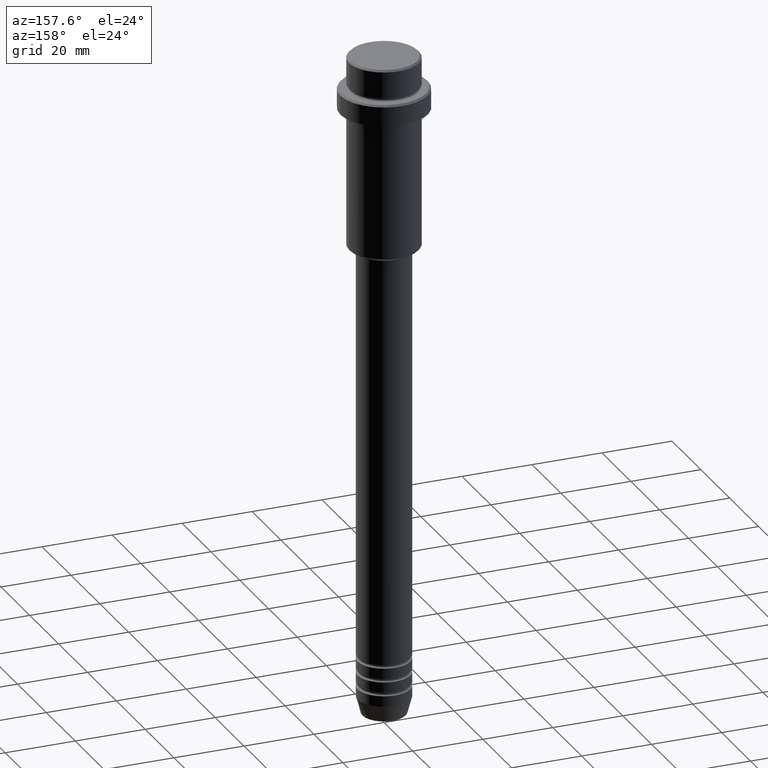
[diagram: clean part render]
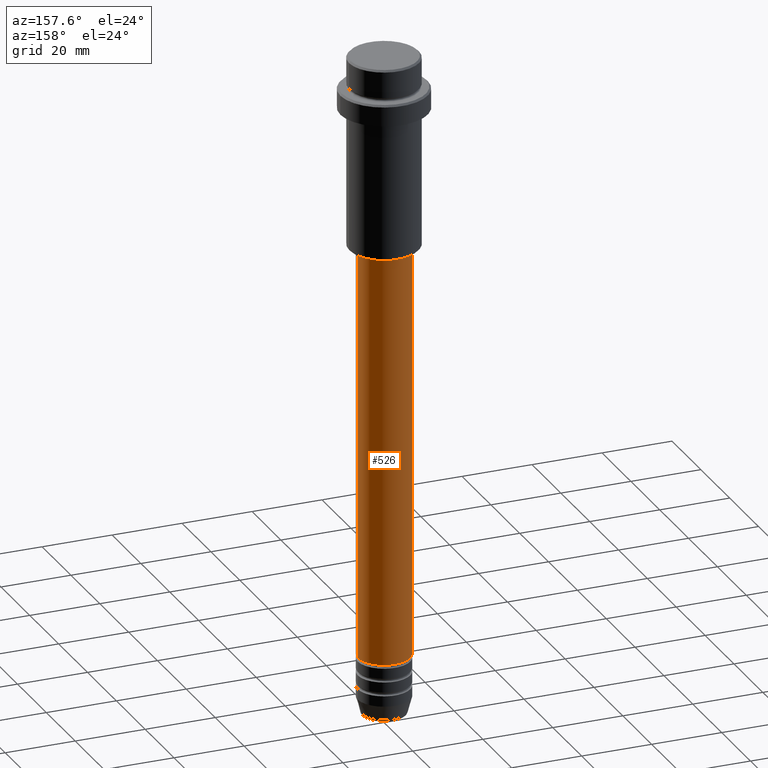
[diagram: same view with one face highlighted and labeled with its STEP entity id]
A machine part, auxiliary view. The second image highlights one B-rep face of the part: STEP entity #526.
In plain terms, the highlighted cylindrical surface (edge-blend (fillet) strip) has radius 7.5 mm, axis along (-0, -0, 1).
Its self-contained STEP definition (entity closure, byte-faithful):
#26 = CYLINDRICAL_SURFACE ( 'NONE', #1089, 7.500000000000000000 ) ;
#107 = DIRECTION ( 'NONE',  ( -0.000000000000000000, -0.000000000000000000, 1.000000000000000000 ) ) ;
#200 = ORIENTED_EDGE ( 'NONE', *, *, #774, .T. ) ;
#232 = EDGE_LOOP ( 'NONE', ( #200, #1195, #753, #1387 ) ) ;
#384 = DIRECTION ( 'NONE',  ( -0.000000000000000000, -0.000000000000000000, 1.000000000000000000 ) ) ;
#449 = DIRECTION ( 'NONE',  ( -0.000000000000000000, -0.000000000000000000, 1.000000000000000000 ) ) ;
#485 = CARTESIAN_POINT ( 'NONE',  ( 7.500000000000000000, 0.000000000000000000, 0.000000000000000000 ) ) ;
#495 = CARTESIAN_POINT ( 'NONE',  ( 7.500000000000000000, 0.000000000000000000, -172.9999999999999147 ) ) ;
#500 = CARTESIAN_POINT ( 'NONE',  ( 7.500000000000000000, 0.000000000000000000, -56.00000000000000000 ) ) ;
#507 = DIRECTION ( 'NONE',  ( -0.000000000000000000, -0.000000000000000000, 1.000000000000000000 ) ) ;
#525 = CARTESIAN_POINT ( 'NONE',  ( 0.000000000000000000, 0.000000000000000000, 0.000000000000000000 ) ) ;
#526 = ADVANCED_FACE ( 'NONE', ( #788 ), #26, .T. ) ;
#536 = VECTOR ( 'NONE', #449, 1000.000000000000000 ) ;
#559 = DIRECTION ( 'NONE',  ( -0.000000000000000000, -0.000000000000000000, 1.000000000000000000 ) ) ;
#662 = VECTOR ( 'NONE', #384, 1000.000000000000000 ) ;
#732 = CARTESIAN_POINT ( 'NONE',  ( -7.500000000000000000, 9.184850993605147944E-16, -56.00000000000000000 ) ) ;
#753 = ORIENTED_EDGE ( 'NONE', *, *, #1390, .F. ) ;
#774 = EDGE_CURVE ( 'NONE', #1017, #1086, #824, .T. ) ;
#788 = FACE_OUTER_BOUND ( 'NONE', #232, .T. ) ;
#794 = EDGE_CURVE ( 'NONE', #1086, #1147, #859, .T. ) ;
#824 = CIRCLE ( 'NONE', #1142, 7.500000000000000000 ) ;
#855 = EDGE_CURVE ( 'NONE', #1017, #992, #885, .T. ) ;
#859 = LINE ( 'NONE', #874, #536 ) ;
#868 = DIRECTION ( 'NONE',  ( 1.000000000000000000, 0.000000000000000000, 0.000000000000000000 ) ) ;
#874 = CARTESIAN_POINT ( 'NONE',  ( -7.500000000000000000, 9.184850993605147944E-16, 0.000000000000000000 ) ) ;
#885 = LINE ( 'NONE', #485, #662 ) ;
#987 = DIRECTION ( 'NONE',  ( 1.000000000000000000, 0.000000000000000000, 0.000000000000000000 ) ) ;
#992 = VERTEX_POINT ( 'NONE', #500 ) ;
#1017 = VERTEX_POINT ( 'NONE', #495 ) ;
#1045 = DIRECTION ( 'NONE',  ( 1.000000000000000000, 0.000000000000000000, 0.000000000000000000 ) ) ;
#1074 = CIRCLE ( 'NONE', #1188, 7.500000000000000000 ) ;
#1075 = CARTESIAN_POINT ( 'NONE',  ( 0.000000000000000000, 0.000000000000000000, -172.9999999999999147 ) ) ;
#1086 = VERTEX_POINT ( 'NONE', #1168 ) ;
#1089 = AXIS2_PLACEMENT_3D ( 'NONE', #525, #507, #1045 ) ;
#1142 = AXIS2_PLACEMENT_3D ( 'NONE', #1075, #107, #868 ) ;
#1147 = VERTEX_POINT ( 'NONE', #732 ) ;
#1168 = CARTESIAN_POINT ( 'NONE',  ( -7.500000000000000000, 9.184850993605147944E-16, -172.9999999999999147 ) ) ;
#1188 = AXIS2_PLACEMENT_3D ( 'NONE', #1207, #559, #987 ) ;
#1195 = ORIENTED_EDGE ( 'NONE', *, *, #794, .T. ) ;
#1207 = CARTESIAN_POINT ( 'NONE',  ( 0.000000000000000000, 0.000000000000000000, -56.00000000000000000 ) ) ;
#1387 = ORIENTED_EDGE ( 'NONE', *, *, #855, .F. ) ;
#1390 = EDGE_CURVE ( 'NONE', #992, #1147, #1074, .T. ) ;